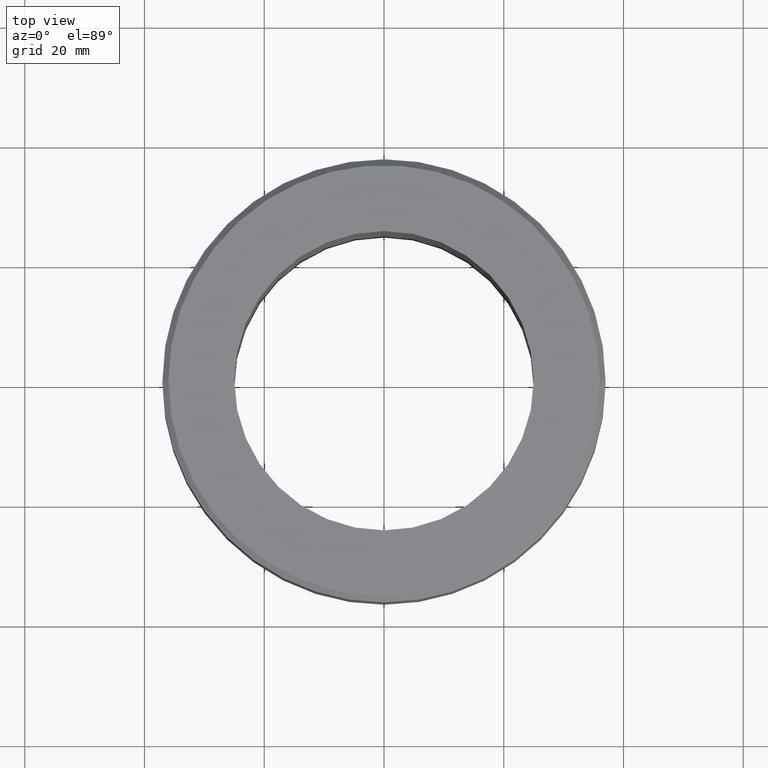
[diagram: clean part render]
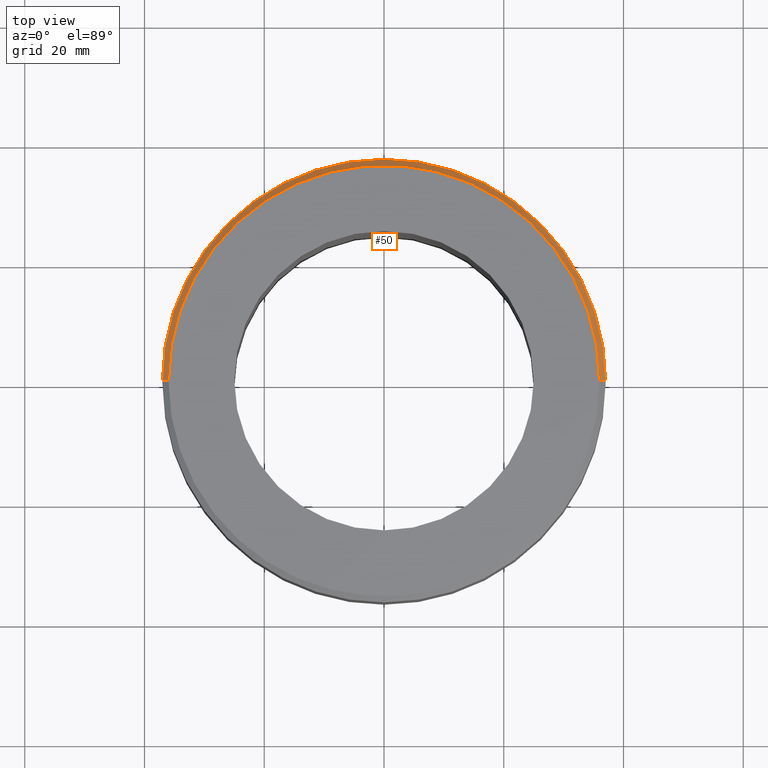
[diagram: same view with one face highlighted and labeled with its STEP entity id]
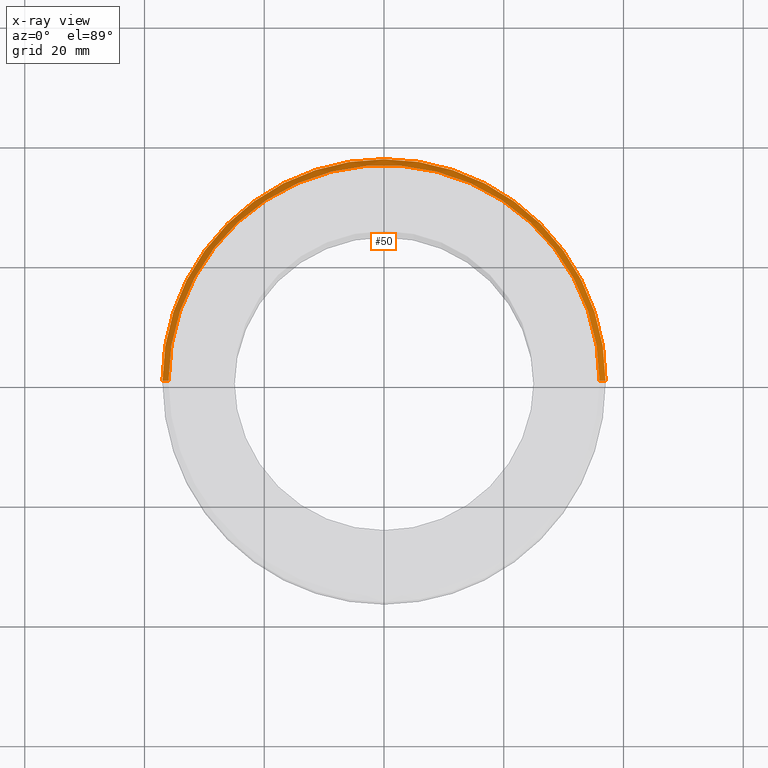
[diagram: x-ray of the same camera — body ghosted, the highlighted face saturated]
A machine part, top view. The second image highlights one B-rep face of the part: STEP entity #50.
The next image is the same camera in x-ray: the body ghosted, the highlighted face saturated — about 0% of this face is hidden behind the body in this view.
In plain terms, the highlighted conical surface has half-angle 45 deg.
Its self-contained STEP definition (entity closure, byte-faithful):
#12 = VERTEX_POINT ( 'NONE', #430 ) ;
#14 = ORIENTED_EDGE ( 'NONE', *, *, #84, .F. ) ;
#19 = AXIS2_PLACEMENT_3D ( 'NONE', #485, #186, #188 ) ;
#33 = CARTESIAN_POINT ( 'NONE',  ( -37.00000000000000000, 4.531193156845206793E-15, -0.9999999999999870104 ) ) ;
#38 = AXIS2_PLACEMENT_3D ( 'NONE', #58, #355, #276 ) ;
#50 = ADVANCED_FACE ( 'NONE', ( #134 ), #139, .T. ) ;
#58 = CARTESIAN_POINT ( 'NONE',  ( 0.000000000000000000, 0.000000000000000000, 0.000000000000000000 ) ) ;
#84 = EDGE_CURVE ( 'NONE', #357, #12, #128, .T. ) ;
#86 = CARTESIAN_POINT ( 'NONE',  ( -36.00000000000002132, 0.000000000000000000, 0.000000000000000000 ) ) ;
#123 = DIRECTION ( 'NONE',  ( -1.000000000000000000, 0.000000000000000000, 0.000000000000000000 ) ) ;
#128 = CIRCLE ( 'NONE', #19, 37.00000000000000000 ) ;
#134 = FACE_OUTER_BOUND ( 'NONE', #264, .T. ) ;
#135 = CARTESIAN_POINT ( 'NONE',  ( 36.00000000000002132, 4.408728476930474011E-15, 0.000000000000000000 ) ) ;
#139 = CONICAL_SURFACE ( 'NONE', #306, 36.00000000000002132, 0.7853981633974447263 ) ;
#142 = DIRECTION ( 'NONE',  ( -0.7071067811865451302, 0.000000000000000000, -0.7071067811865500152 ) ) ;
#147 = ORIENTED_EDGE ( 'NONE', *, *, #446, .T. ) ;
#151 = VECTOR ( 'NONE', #142, 1000.000000000000114 ) ;
#172 = VECTOR ( 'NONE', #211, 1000.000000000000114 ) ;
#182 = LINE ( 'NONE', #346, #151 ) ;
#186 = DIRECTION ( 'NONE',  ( 0.000000000000000000, 0.000000000000000000, -1.000000000000000000 ) ) ;
#188 = DIRECTION ( 'NONE',  ( 1.000000000000000000, 0.000000000000000000, 0.000000000000000000 ) ) ;
#191 = ORIENTED_EDGE ( 'NONE', *, *, #312, .F. ) ;
#199 = VERTEX_POINT ( 'NONE', #86 ) ;
#211 = DIRECTION ( 'NONE',  ( 0.7071067811865451302, 8.659560562354904508E-17, -0.7071067811865500152 ) ) ;
#214 = CIRCLE ( 'NONE', #38, 36.00000000000002132 ) ;
#250 = LINE ( 'NONE', #135, #172 ) ;
#264 = EDGE_LOOP ( 'NONE', ( #191, #147, #14, #275 ) ) ;
#275 = ORIENTED_EDGE ( 'NONE', *, *, #489, .F. ) ;
#276 = DIRECTION ( 'NONE',  ( 1.000000000000000000, 0.000000000000000000, 0.000000000000000000 ) ) ;
#278 = VERTEX_POINT ( 'NONE', #335 ) ;
#301 = CARTESIAN_POINT ( 'NONE',  ( 0.000000000000000000, 0.000000000000000000, 0.000000000000000000 ) ) ;
#306 = AXIS2_PLACEMENT_3D ( 'NONE', #301, #434, #123 ) ;
#312 = EDGE_CURVE ( 'NONE', #278, #199, #214, .T. ) ;
#335 = CARTESIAN_POINT ( 'NONE',  ( 36.00000000000002132, 4.469960816887840007E-15, 0.000000000000000000 ) ) ;
#346 = CARTESIAN_POINT ( 'NONE',  ( -36.00000000000002132, 0.000000000000000000, 0.000000000000000000 ) ) ;
#355 = DIRECTION ( 'NONE',  ( -0.000000000000000000, -0.000000000000000000, 1.000000000000000000 ) ) ;
#357 = VERTEX_POINT ( 'NONE', #33 ) ;
#430 = CARTESIAN_POINT ( 'NONE',  ( 37.00000000000000000, 0.000000000000000000, -0.9999999999999870104 ) ) ;
#434 = DIRECTION ( 'NONE',  ( 0.000000000000000000, 0.000000000000000000, -1.000000000000000000 ) ) ;
#446 = EDGE_CURVE ( 'NONE', #278, #12, #250, .T. ) ;
#485 = CARTESIAN_POINT ( 'NONE',  ( 0.000000000000000000, 0.000000000000000000, -0.9999999999999870104 ) ) ;
#489 = EDGE_CURVE ( 'NONE', #199, #357, #182, .T. ) ;